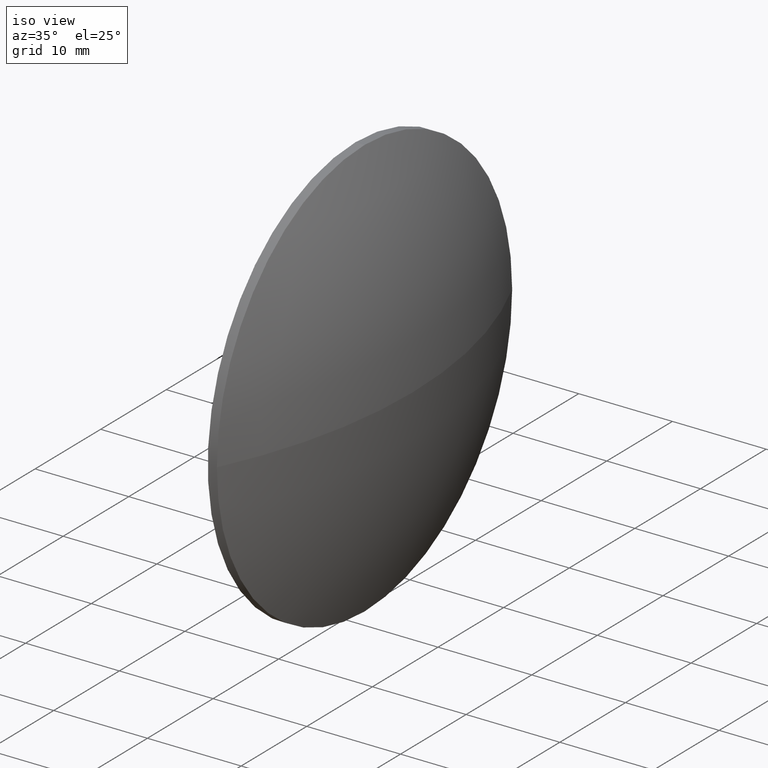
[diagram: clean part render]
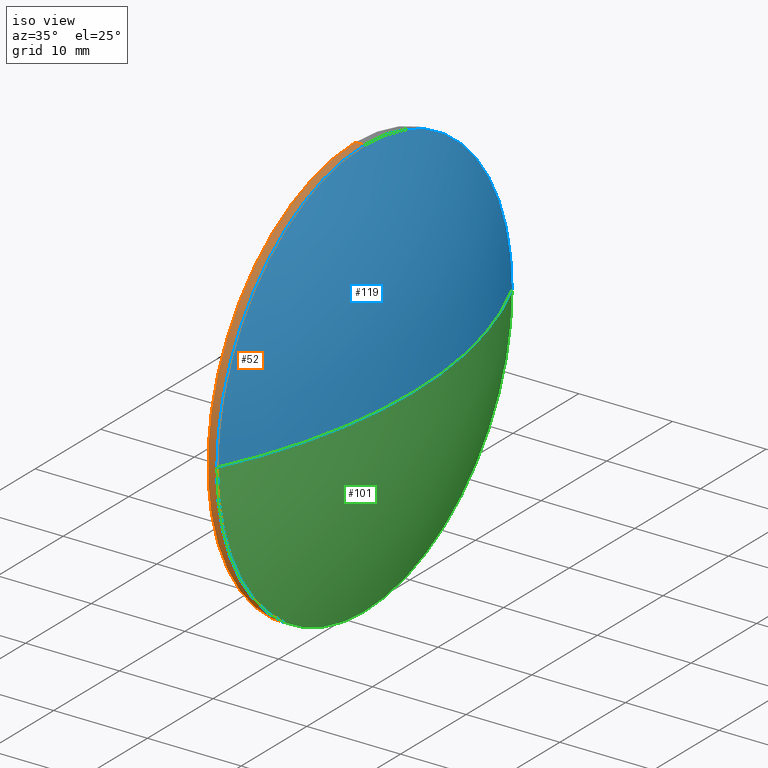
[diagram: same view with three faces highlighted in distinct colors, each labeled with its STEP entity id]
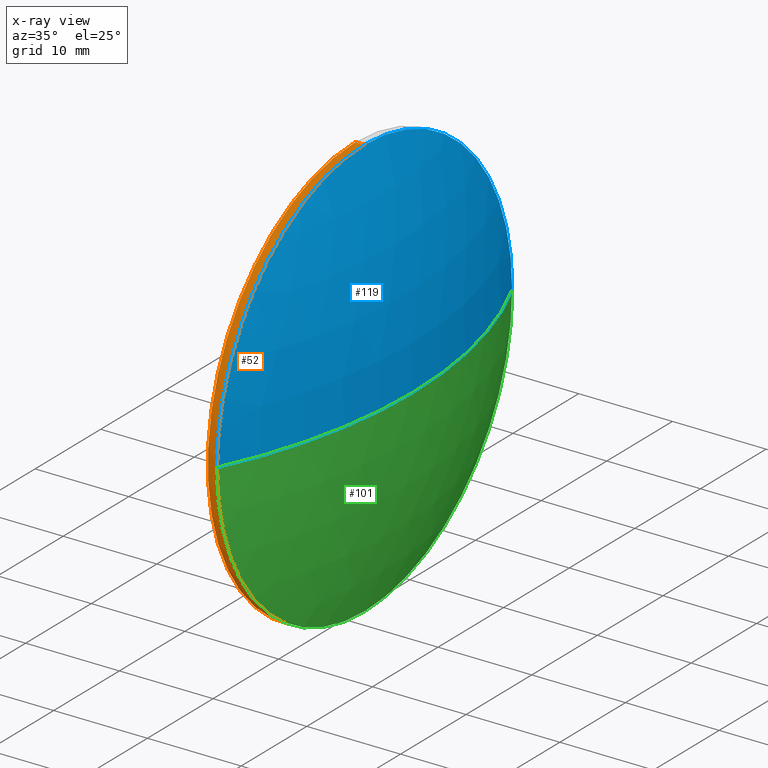
[diagram: x-ray of the same camera — body ghosted, the three highlighted faces saturated]
A machine part, iso view with three faces highlighted in distinct colors.
The next image is the same camera in x-ray (body ghosted, the three faces saturated) — at least one of them is partly hidden behind the body in this view.
Their STEP definitions:

[orange] entity #52 — the highlighted cylindrical surface (partial cylindrical patch) has radius 22.5 mm, axis along (-1, -0, -0).
#6 = CARTESIAN_POINT ( 'NONE',  ( 391.6943700136168900, 50.66319577228512100, 0.0000000000000000000 ) ) ;
#14 = CIRCLE ( 'NONE', #169, 22.50000000000000700 ) ;
#17 = CARTESIAN_POINT ( 'NONE',  ( 390.7243700136168600, 50.66319577228512100, 22.50000000000000700 ) ) ;
#19 = VECTOR ( 'NONE', #23, 1000.000000000000000 ) ;
#20 = DIRECTION ( 'NONE',  ( -1.000000000000000000, -0.0000000000000000000, -0.0000000000000000000 ) ) ;
#23 = DIRECTION ( 'NONE',  ( -1.000000000000000000, -0.0000000000000000000, -0.0000000000000000000 ) ) ;
#25 = ORIENTED_EDGE ( 'NONE', *, *, #109, .F. ) ;
#26 = EDGE_CURVE ( 'NONE', #39, #116, #157, .T. ) ;
#34 = DIRECTION ( 'NONE',  ( 0.0000000000000000000, 0.0000000000000000000, 1.000000000000000000 ) ) ;
#38 = CARTESIAN_POINT ( 'NONE',  ( 381.2895901284637100, 50.66319577228512100, 0.0000000000000000000 ) ) ;
#39 = VERTEX_POINT ( 'NONE', #85 ) ;
#41 = CYLINDRICAL_SURFACE ( 'NONE', #134, 22.50000000000000700 ) ;
#43 = EDGE_CURVE ( 'NONE', #107, #111, #14, .T. ) ;
#45 = VERTEX_POINT ( 'NONE', #17 ) ;
#51 = DIRECTION ( 'NONE',  ( 0.0000000000000000000, 0.0000000000000000000, 1.000000000000000000 ) ) ;
#52 = ADVANCED_FACE ( 'NONE', ( #61 ), #41, .T. ) ;
#61 = FACE_OUTER_BOUND ( 'NONE', #82, .T. ) ;
#67 = EDGE_CURVE ( 'NONE', #39, #107, #159, .T. ) ;
#82 = EDGE_LOOP ( 'NONE', ( #168, #183, #121, #133, #25 ) ) ;
#84 = CARTESIAN_POINT ( 'NONE',  ( 391.6943700136168900, 28.16319577228507900, -2.755455298081546000E-015 ) ) ;
#85 = CARTESIAN_POINT ( 'NONE',  ( 391.6943700136168900, 50.66319577228512100, -22.50000000000000700 ) ) ;
#91 = VECTOR ( 'NONE', #135, 1000.000000000000000 ) ;
#92 = AXIS2_PLACEMENT_3D ( 'NONE', #6, #128, #139 ) ;
#94 = CARTESIAN_POINT ( 'NONE',  ( 381.2895901284637100, 50.66319577228512100, -22.50000000000000700 ) ) ;
#96 = DIRECTION ( 'NONE',  ( 0.0000000000000000000, 0.0000000000000000000, 1.000000000000000000 ) ) ;
#105 = AXIS2_PLACEMENT_3D ( 'NONE', #115, #176, #51 ) ;
#107 = VERTEX_POINT ( 'NONE', #84 ) ;
#109 = EDGE_CURVE ( 'NONE', #116, #45, #162, .T. ) ;
#111 = VERTEX_POINT ( 'NONE', #164 ) ;
#115 = CARTESIAN_POINT ( 'NONE',  ( 390.7243700136168600, 50.66319577228512100, 0.0000000000000000000 ) ) ;
#116 = VERTEX_POINT ( 'NONE', #178 ) ;
#121 = ORIENTED_EDGE ( 'NONE', *, *, #43, .T. ) ;
#122 = LINE ( 'NONE', #143, #19 ) ;
#128 = DIRECTION ( 'NONE',  ( -1.000000000000000000, -0.0000000000000000000, -0.0000000000000000000 ) ) ;
#133 = ORIENTED_EDGE ( 'NONE', *, *, #149, .T. ) ;
#134 = AXIS2_PLACEMENT_3D ( 'NONE', #38, #148, #34 ) ;
#135 = DIRECTION ( 'NONE',  ( -1.000000000000000000, -0.0000000000000000000, -0.0000000000000000000 ) ) ;
#139 = DIRECTION ( 'NONE',  ( 0.0000000000000000000, 0.0000000000000000000, 1.000000000000000000 ) ) ;
#143 = CARTESIAN_POINT ( 'NONE',  ( 381.2895901284637100, 50.66319577228512100, 22.50000000000000700 ) ) ;
#148 = DIRECTION ( 'NONE',  ( -1.000000000000000000, -0.0000000000000000000, -0.0000000000000000000 ) ) ;
#149 = EDGE_CURVE ( 'NONE', #111, #45, #122, .T. ) ;
#157 = LINE ( 'NONE', #94, #91 ) ;
#159 = CIRCLE ( 'NONE', #92, 22.50000000000000700 ) ;
#162 = CIRCLE ( 'NONE', #105, 22.50000000000000700 ) ;
#164 = CARTESIAN_POINT ( 'NONE',  ( 391.6943700136168900, 50.66319577228512100, 22.50000000000000700 ) ) ;
#168 = ORIENTED_EDGE ( 'NONE', *, *, #26, .F. ) ;
#169 = AXIS2_PLACEMENT_3D ( 'NONE', #179, #20, #96 ) ;
#176 = DIRECTION ( 'NONE',  ( -1.000000000000000000, -0.0000000000000000000, -0.0000000000000000000 ) ) ;
#178 = CARTESIAN_POINT ( 'NONE',  ( 390.7243700136168600, 50.66319577228512100, -22.50000000000000700 ) ) ;
#179 = CARTESIAN_POINT ( 'NONE',  ( 391.6943700136168900, 50.66319577228512100, 0.0000000000000000000 ) ) ;
#183 = ORIENTED_EDGE ( 'NONE', *, *, #67, .T. ) ;

[blue] entity #119 — the highlighted spherical surface has radius 51.9071 mm.
#8 = DIRECTION ( 'NONE',  ( -0.0000000000000000000, 0.0000000000000000000, -1.000000000000000000 ) ) ;
#13 = EDGE_CURVE ( 'NONE', #111, #160, #49, .T. ) ;
#14 = CIRCLE ( 'NONE', #169, 22.50000000000000700 ) ;
#18 = EDGE_LOOP ( 'NONE', ( #152, #80, #71, #185 ) ) ;
#20 = DIRECTION ( 'NONE',  ( -1.000000000000000000, -0.0000000000000000000, -0.0000000000000000000 ) ) ;
#21 = CARTESIAN_POINT ( 'NONE',  ( 391.6943700136168900, 50.66319577228512100, 0.0000000000000000000 ) ) ;
#33 = DIRECTION ( 'NONE',  ( 0.0000000000000000000, 1.000000000000000000, 0.0000000000000000000 ) ) ;
#36 = DIRECTION ( 'NONE',  ( 0.0000000000000000000, 0.0000000000000000000, 1.000000000000000000 ) ) ;
#43 = EDGE_CURVE ( 'NONE', #107, #111, #14, .T. ) ;
#49 = CIRCLE ( 'NONE', #125, 22.50000000000000700 ) ;
#53 = CARTESIAN_POINT ( 'NONE',  ( 344.9172647504589700, 50.66319577228509300, 0.0000000000000000000 ) ) ;
#54 = CARTESIAN_POINT ( 'NONE',  ( 396.8243700136169400, 50.66319577228509300, 0.0000000000000000000 ) ) ;
#69 = CARTESIAN_POINT ( 'NONE',  ( 344.9172647504589700, 50.66319577228509300, 0.0000000000000000000 ) ) ;
#71 = ORIENTED_EDGE ( 'NONE', *, *, #13, .F. ) ;
#77 = VERTEX_POINT ( 'NONE', #54 ) ;
#79 = EDGE_CURVE ( 'NONE', #77, #107, #131, .T. ) ;
#80 = ORIENTED_EDGE ( 'NONE', *, *, #118, .T. ) ;
#83 = SPHERICAL_SURFACE ( 'NONE', #184, 51.90710526315794500 ) ;
#84 = CARTESIAN_POINT ( 'NONE',  ( 391.6943700136168900, 28.16319577228507900, -2.755455298081546000E-015 ) ) ;
#96 = DIRECTION ( 'NONE',  ( 0.0000000000000000000, 0.0000000000000000000, 1.000000000000000000 ) ) ;
#97 = DIRECTION ( 'NONE',  ( 0.0000000000000000000, 1.000000000000000000, 1.224646799147353000E-016 ) ) ;
#99 = DIRECTION ( 'NONE',  ( 1.000000000000000000, 0.0000000000000000000, 0.0000000000000000000 ) ) ;
#107 = VERTEX_POINT ( 'NONE', #84 ) ;
#111 = VERTEX_POINT ( 'NONE', #164 ) ;
#114 = DIRECTION ( 'NONE',  ( 0.0000000000000000000, 1.224646799147353200E-016, -1.000000000000000000 ) ) ;
#117 = CARTESIAN_POINT ( 'NONE',  ( 391.6943700136168900, 73.16319577228513500, 0.0000000000000000000 ) ) ;
#118 = EDGE_CURVE ( 'NONE', #77, #160, #171, .T. ) ;
#119 = ADVANCED_FACE ( 'NONE', ( #174 ), #83, .T. ) ;
#125 = AXIS2_PLACEMENT_3D ( 'NONE', #21, #147, #36 ) ;
#131 = CIRCLE ( 'NONE', #138, 51.90710526315795200 ) ;
#137 = AXIS2_PLACEMENT_3D ( 'NONE', #53, #150, #99 ) ;
#138 = AXIS2_PLACEMENT_3D ( 'NONE', #177, #114, #97 ) ;
#147 = DIRECTION ( 'NONE',  ( -1.000000000000000000, -0.0000000000000000000, -0.0000000000000000000 ) ) ;
#150 = DIRECTION ( 'NONE',  ( -0.0000000000000000000, 0.0000000000000000000, 1.000000000000000000 ) ) ;
#152 = ORIENTED_EDGE ( 'NONE', *, *, #79, .F. ) ;
#160 = VERTEX_POINT ( 'NONE', #117 ) ;
#164 = CARTESIAN_POINT ( 'NONE',  ( 391.6943700136168900, 50.66319577228512100, 22.50000000000000700 ) ) ;
#169 = AXIS2_PLACEMENT_3D ( 'NONE', #179, #20, #96 ) ;
#171 = CIRCLE ( 'NONE', #137, 51.90710526315795200 ) ;
#174 = FACE_OUTER_BOUND ( 'NONE', #18, .T. ) ;
#177 = CARTESIAN_POINT ( 'NONE',  ( 344.9172647504589700, 50.66319577228509300, 0.0000000000000000000 ) ) ;
#179 = CARTESIAN_POINT ( 'NONE',  ( 391.6943700136168900, 50.66319577228512100, 0.0000000000000000000 ) ) ;
#184 = AXIS2_PLACEMENT_3D ( 'NONE', #69, #8, #33 ) ;
#185 = ORIENTED_EDGE ( 'NONE', *, *, #43, .F. ) ;

[green] entity #101 — the highlighted spherical surface has radius 51.9071 mm.
#1 = ORIENTED_EDGE ( 'NONE', *, *, #79, .T. ) ;
#4 = ORIENTED_EDGE ( 'NONE', *, *, #118, .F. ) ;
#5 = CARTESIAN_POINT ( 'NONE',  ( 344.9172647504589700, 50.66319577228509300, 0.0000000000000000000 ) ) ;
#6 = CARTESIAN_POINT ( 'NONE',  ( 391.6943700136168900, 50.66319577228512100, 0.0000000000000000000 ) ) ;
#7 = DIRECTION ( 'NONE',  ( 0.0000000000000000000, 1.000000000000000000, 0.0000000000000000000 ) ) ;
#24 = EDGE_LOOP ( 'NONE', ( #4, #1, #142, #60 ) ) ;
#39 = VERTEX_POINT ( 'NONE', #85 ) ;
#53 = CARTESIAN_POINT ( 'NONE',  ( 344.9172647504589700, 50.66319577228509300, 0.0000000000000000000 ) ) ;
#54 = CARTESIAN_POINT ( 'NONE',  ( 396.8243700136169400, 50.66319577228509300, 0.0000000000000000000 ) ) ;
#60 = ORIENTED_EDGE ( 'NONE', *, *, #106, .F. ) ;
#65 = DIRECTION ( 'NONE',  ( -1.000000000000000000, -0.0000000000000000000, -0.0000000000000000000 ) ) ;
#67 = EDGE_CURVE ( 'NONE', #39, #107, #159, .T. ) ;
#77 = VERTEX_POINT ( 'NONE', #54 ) ;
#79 = EDGE_CURVE ( 'NONE', #77, #107, #131, .T. ) ;
#84 = CARTESIAN_POINT ( 'NONE',  ( 391.6943700136168900, 28.16319577228507900, -2.755455298081546000E-015 ) ) ;
#85 = CARTESIAN_POINT ( 'NONE',  ( 391.6943700136168900, 50.66319577228512100, -22.50000000000000700 ) ) ;
#87 = FACE_OUTER_BOUND ( 'NONE', #24, .T. ) ;
#92 = AXIS2_PLACEMENT_3D ( 'NONE', #6, #128, #139 ) ;
#97 = DIRECTION ( 'NONE',  ( 0.0000000000000000000, 1.000000000000000000, 1.224646799147353000E-016 ) ) ;
#99 = DIRECTION ( 'NONE',  ( 1.000000000000000000, 0.0000000000000000000, 0.0000000000000000000 ) ) ;
#101 = ADVANCED_FACE ( 'NONE', ( #87 ), #108, .T. ) ;
#104 = CIRCLE ( 'NONE', #144, 22.50000000000000700 ) ;
#106 = EDGE_CURVE ( 'NONE', #160, #39, #104, .T. ) ;
#107 = VERTEX_POINT ( 'NONE', #84 ) ;
#108 = SPHERICAL_SURFACE ( 'NONE', #158, 51.90710526315794500 ) ;
#113 = DIRECTION ( 'NONE',  ( -0.0000000000000000000, 0.0000000000000000000, -1.000000000000000000 ) ) ;
#114 = DIRECTION ( 'NONE',  ( 0.0000000000000000000, 1.224646799147353200E-016, -1.000000000000000000 ) ) ;
#117 = CARTESIAN_POINT ( 'NONE',  ( 391.6943700136168900, 73.16319577228513500, 0.0000000000000000000 ) ) ;
#118 = EDGE_CURVE ( 'NONE', #77, #160, #171, .T. ) ;
#128 = DIRECTION ( 'NONE',  ( -1.000000000000000000, -0.0000000000000000000, -0.0000000000000000000 ) ) ;
#131 = CIRCLE ( 'NONE', #138, 51.90710526315795200 ) ;
#137 = AXIS2_PLACEMENT_3D ( 'NONE', #53, #150, #99 ) ;
#138 = AXIS2_PLACEMENT_3D ( 'NONE', #177, #114, #97 ) ;
#139 = DIRECTION ( 'NONE',  ( 0.0000000000000000000, 0.0000000000000000000, 1.000000000000000000 ) ) ;
#142 = ORIENTED_EDGE ( 'NONE', *, *, #67, .F. ) ;
#144 = AXIS2_PLACEMENT_3D ( 'NONE', #175, #65, #161 ) ;
#150 = DIRECTION ( 'NONE',  ( -0.0000000000000000000, 0.0000000000000000000, 1.000000000000000000 ) ) ;
#158 = AXIS2_PLACEMENT_3D ( 'NONE', #5, #113, #7 ) ;
#159 = CIRCLE ( 'NONE', #92, 22.50000000000000700 ) ;
#160 = VERTEX_POINT ( 'NONE', #117 ) ;
#161 = DIRECTION ( 'NONE',  ( 0.0000000000000000000, 0.0000000000000000000, 1.000000000000000000 ) ) ;
#171 = CIRCLE ( 'NONE', #137, 51.90710526315795200 ) ;
#175 = CARTESIAN_POINT ( 'NONE',  ( 391.6943700136168900, 50.66319577228512100, 0.0000000000000000000 ) ) ;
#177 = CARTESIAN_POINT ( 'NONE',  ( 344.9172647504589700, 50.66319577228509300, 0.0000000000000000000 ) ) ;